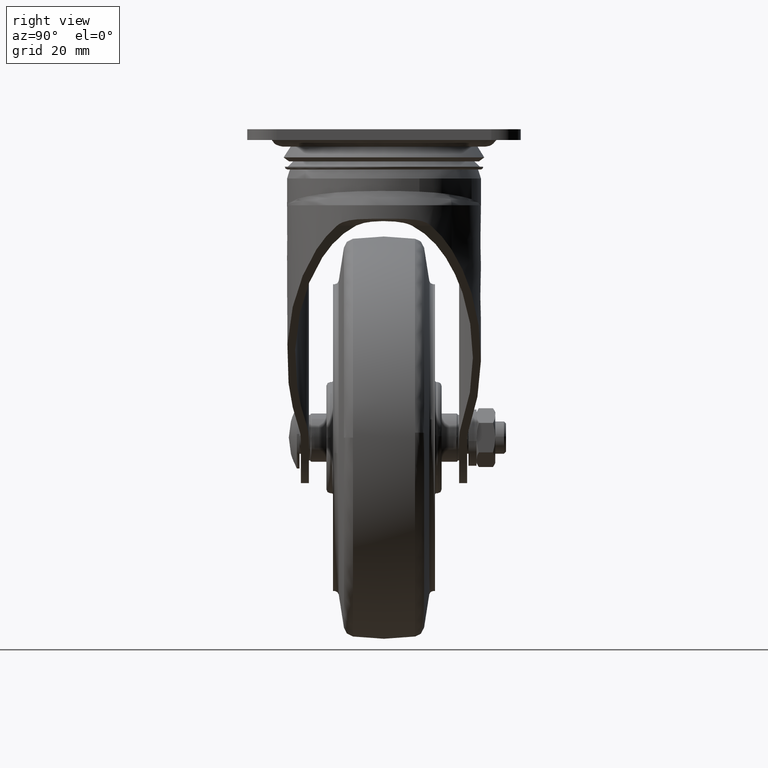
[diagram: clean part render]
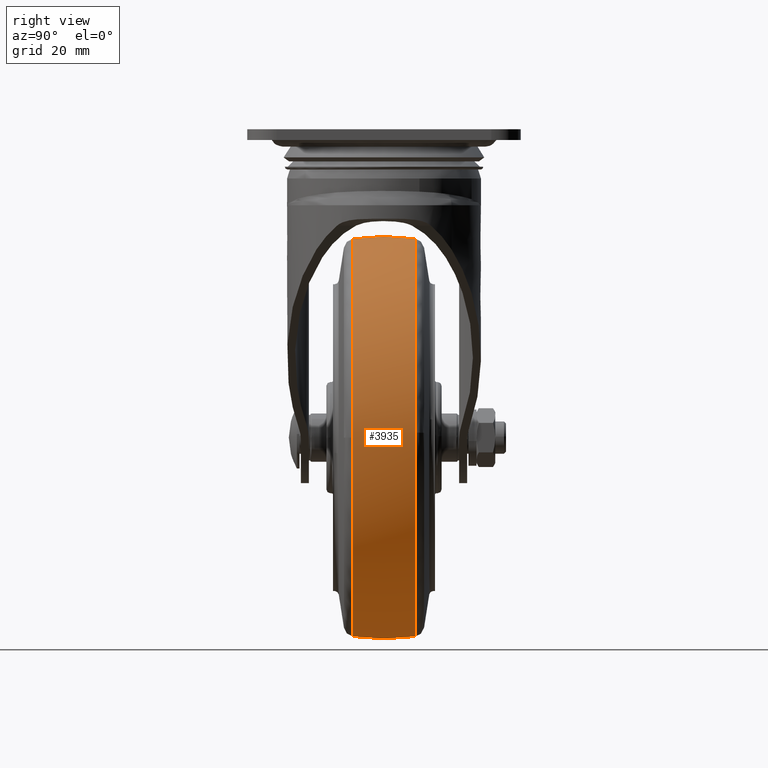
[diagram: same view with one face highlighted and labeled with its STEP entity id]
A machine part, right view. The second image highlights one B-rep face of the part: STEP entity #3935.
In plain terms, the highlighted face is a freeform B-spline surface patch.
Its self-contained STEP definition (entity closure, byte-faithful):
#2646=CARTESIAN_POINT('',(74.157616883559456,-11.578916482498091,-6.512784E-012));
#2647=VERTEX_POINT('',#2646);
#2661=CARTESIAN_POINT('',(-5.684342E-014,-11.578947922182341,74.157614700137188));
#2662=VERTEX_POINT('',#2661);
#2663=CARTESIAN_POINT('',(-5.684342E-014,-11.578947922182341,74.157614700137188));
#2664=CARTESIAN_POINT('',(74.157611003110134,-11.578948571175021,74.157614700136961));
#2665=CARTESIAN_POINT('',(74.157616883559456,-11.578916482498085,-6.512784E-012));
#2673=(BOUNDED_CURVE()B_SPLINE_CURVE(2,(#2663,#2664,#2665),.UNSPECIFIED.,.F.,.U.)B_SPLINE_CURVE_WITH_KNOTS((3,3),(0.0,0.249999988584620),.UNSPECIFIED.)CURVE()GEOMETRIC_REPRESENTATION_ITEM()RATIONAL_B_SPLINE_CURVE((1.0,0.707106794560497,0.999999973252103))REPRESENTATION_ITEM(''));
#2674=EDGE_CURVE('',#2662,#2647,#2673,.T.);
#2676=CARTESIAN_POINT('',(-73.661634925751287,-11.578909018834720,-8.562488077963099));
#2677=VERTEX_POINT('',#2676);
#2678=CARTESIAN_POINT('',(-73.661634925751287,-11.578909018834718,-8.562488077963099));
#2679=CARTESIAN_POINT('',(-74.157620206913109,-11.578910022193384,-4.295609425317387));
#2680=CARTESIAN_POINT('',(-74.157620043199699,-11.578911148939181,-0.000000621081920));
#2681=CARTESIAN_POINT('',(-74.157617216918979,-11.578930600612997,74.157614407584433));
#2682=CARTESIAN_POINT('',(-5.684342E-014,-11.578947922182341,74.157614700137188));
#2690=(BOUNDED_CURVE()B_SPLINE_CURVE(2,(#2678,#2679,#2680,#2681,#2682),.UNSPECIFIED.,.F.,.U.)B_SPLINE_CURVE_WITH_KNOTS((3,2,3),(0.730000147908049,0.750000000000000,1.0),.UNSPECIFIED.)CURVE()GEOMETRIC_REPRESENTATION_ITEM()RATIONAL_B_SPLINE_CURVE((0.956886409309762,0.976568715779982,1.0,0.707106781186547,1.0))REPRESENTATION_ITEM(''));
#2691=EDGE_CURVE('',#2677,#2662,#2690,.T.);
#2693=CARTESIAN_POINT('',(-5.696281E-014,-11.578882446838721,-74.157624277626596));
#2694=VERTEX_POINT('',#2693);
#2708=CARTESIAN_POINT('',(26.200034225914131,-11.578885571254871,-69.375149223615338));
#2709=VERTEX_POINT('',#2708);
#2710=CARTESIAN_POINT('',(26.200034225914120,-11.578885571254871,-69.375149223615338));
#2711=CARTESIAN_POINT('',(13.536506349746737,-11.578882953409460,-74.157624338162648));
#2712=CARTESIAN_POINT('',(-5.696281E-014,-11.578882446838721,-74.157624277626596));
#2720=(BOUNDED_CURVE()B_SPLINE_CURVE(2,(#2710,#2711,#2712),.UNSPECIFIED.,.F.,.U.)B_SPLINE_CURVE_WITH_KNOTS((3,3),(0.439999993027177,0.500000000000000),.UNSPECIFIED.)CURVE()GEOMETRIC_REPRESENTATION_ITEM()RATIONAL_B_SPLINE_CURVE((0.893152545280916,0.929705619315601,1.0))REPRESENTATION_ITEM(''));
#2721=EDGE_CURVE('',#2709,#2694,#2720,.T.);
#2758=CARTESIAN_POINT('',(74.157616883559427,-11.578916482498080,-6.512784E-012));
#2759=CARTESIAN_POINT('',(74.157619125064585,-11.578893709207986,-51.263612095189963));
#2760=CARTESIAN_POINT('',(26.200034225914120,-11.578885571254871,-69.375149223615338));
#2768=(BOUNDED_CURVE()B_SPLINE_CURVE(2,(#2758,#2759,#2760),.UNSPECIFIED.,.F.,.U.)B_SPLINE_CURVE_WITH_KNOTS((3,3),(0.249999988584620,0.439999993027177),.UNSPECIFIED.)CURVE()GEOMETRIC_REPRESENTATION_ITEM()RATIONAL_B_SPLINE_CURVE((1.000000026747900,0.777401154916493,0.893152545280916))REPRESENTATION_ITEM(''));
#2769=EDGE_CURVE('',#2647,#2709,#2768,.T.);
#2798=CARTESIAN_POINT('',(74.134196835988888,11.578920849007099,1.863587983165329));
#2799=VERTEX_POINT('',#2798);
#2800=CARTESIAN_POINT('',(-5.696281E-014,11.578892341684369,-74.157622809211517));
#2801=VERTEX_POINT('',#2800);
#2802=CARTESIAN_POINT('',(74.134196835988888,11.578920849007101,1.863587983165329));
#2803=CARTESIAN_POINT('',(74.157616692252290,11.578920501413389,0.931939156918001));
#2804=CARTESIAN_POINT('',(74.157616679878060,11.578920153665459,-0.000003988212071));
#2805=CARTESIAN_POINT('',(74.157615695221736,11.578892482279368,-74.157622785073599));
#2806=CARTESIAN_POINT('',(-5.696281E-014,11.578892341684369,-74.157622809211517));
#2814=(BOUNDED_CURVE()B_SPLINE_CURVE(2,(#2802,#2803,#2804,#2805,#2806),.UNSPECIFIED.,.F.,.U.)B_SPLINE_CURVE_WITH_KNOTS((3,2,3),(0.245579882486388,0.250000000000000,0.500000000000000),.UNSPECIFIED.)CURVE()GEOMETRIC_REPRESENTATION_ITEM()RATIONAL_B_SPLINE_CURVE((0.989826136698356,0.994821510215618,1.0,0.707106781186548,1.0))REPRESENTATION_ITEM(''));
#2815=EDGE_CURVE('',#2799,#2801,#2814,.T.);
#2817=CARTESIAN_POINT('',(-73.661633471116247,11.578918898959341,-8.562487892946319));
#2818=VERTEX_POINT('',#2817);
#2832=CARTESIAN_POINT('',(-74.134198958132956,11.578920105005750,-1.863588036564678));
#2833=VERTEX_POINT('',#2832);
#2834=CARTESIAN_POINT('',(-73.661633471116247,11.578918898959335,-8.562487892946319));
#2835=CARTESIAN_POINT('',(-74.049731263223435,11.578919474058864,-5.223747571157347));
#2836=CARTESIAN_POINT('',(-74.134198958132956,11.578920105005750,-1.863588036564678));
#2844=(BOUNDED_CURVE()B_SPLINE_CURVE(2,(#2834,#2835,#2836),.UNSPECIFIED.,.F.,.U.)B_SPLINE_CURVE_WITH_KNOTS((3,3),(0.730000147944140,0.745579892625950),.UNSPECIFIED.)CURVE()GEOMETRIC_REPRESENTATION_ITEM()RATIONAL_B_SPLINE_CURVE((0.956886409380798,0.972218788252939,0.989826159616707))REPRESENTATION_ITEM(''));
#2845=EDGE_CURVE('',#2818,#2833,#2844,.T.);
#2902=CARTESIAN_POINT('',(-5.684342E-014,11.578947396109101,74.157614735006902));
#2903=VERTEX_POINT('',#2902);
#2904=CARTESIAN_POINT('',(-5.684342E-014,11.578947396109101,74.157614735006902));
#2905=CARTESIAN_POINT('',(72.316862386599894,11.578947540282806,74.157614759759227));
#2906=CARTESIAN_POINT('',(74.134196835988888,11.578920849007101,1.863587983165329));
#2914=(BOUNDED_CURVE()B_SPLINE_CURVE(2,(#2904,#2905,#2906),.UNSPECIFIED.,.F.,.U.)B_SPLINE_CURVE_WITH_KNOTS((3,3),(0.0,0.245579882486388),.UNSPECIFIED.)CURVE()GEOMETRIC_REPRESENTATION_ITEM()RATIONAL_B_SPLINE_CURVE((1.0,0.712285270970930,0.989826136698356))REPRESENTATION_ITEM(''));
#2915=EDGE_CURVE('',#2903,#2799,#2914,.T.);
#2922=CARTESIAN_POINT('',(-74.134198958132956,11.578920105005752,-1.863588036564678));
#2923=CARTESIAN_POINT('',(-74.157618694762832,11.578920280223105,-0.931941405403477));
#2924=CARTESIAN_POINT('',(-74.157618668614219,11.578920459285360,-0.000000457245711));
#2925=CARTESIAN_POINT('',(-74.157616587882742,11.578934707860245,74.157614519627131));
#2926=CARTESIAN_POINT('',(-5.684342E-014,11.578947396109101,74.157614735006902));
#2934=(BOUNDED_CURVE()B_SPLINE_CURVE(2,(#2922,#2923,#2924,#2925,#2926),.UNSPECIFIED.,.F.,.U.)B_SPLINE_CURVE_WITH_KNOTS((3,2,3),(0.745579892625950,0.750000000000000,1.0),.UNSPECIFIED.)CURVE()GEOMETRIC_REPRESENTATION_ITEM()RATIONAL_B_SPLINE_CURVE((0.989826159616707,0.994821522094854,1.0,0.707106781186548,1.0))REPRESENTATION_ITEM(''));
#2935=EDGE_CURVE('',#2833,#2903,#2934,.T.);
#3842=CARTESIAN_POINT('',(-73.481397214599895,12.757882361614785,-8.541600383305603));
#3843=CARTESIAN_POINT('',(-74.498373122481283,6.420022245387028,-8.659815361978412));
#3844=CARTESIAN_POINT('',(-74.498373122481297,0.0,-8.659815361978414));
#3845=CARTESIAN_POINT('',(-74.498373122481283,-6.420022245387028,-8.659815361978412));
#3846=CARTESIAN_POINT('',(-73.481397214599895,-12.757882361614785,-8.541600383305603));
#3847=CARTESIAN_POINT('',(-73.976176392930029,12.757882361614792,-4.285130435654120));
#3848=CARTESIAN_POINT('',(-74.999999999999986,6.420022245387028,-4.344436254274612));
#3849=CARTESIAN_POINT('',(-74.999999999999986,0.0,-4.344436254274612));
#3850=CARTESIAN_POINT('',(-74.999999999999986,-6.420022245387027,-4.344436254274612));
#3851=CARTESIAN_POINT('',(-73.976176392930029,-12.757882361614779,-4.285130435654120));
#3852=CARTESIAN_POINT('',(-73.976176392930029,12.757882361614783,0.0));
#3853=CARTESIAN_POINT('',(-75.0,6.420022245387028,0.0));
#3854=CARTESIAN_POINT('',(-75.0,0.0,0.0));
#3855=CARTESIAN_POINT('',(-75.0,-6.420022245387027,0.0));
#3856=CARTESIAN_POINT('',(-73.976176392930029,-12.757882361614783,0.0));
#3857=CARTESIAN_POINT('',(-73.976176392930014,12.757882361614783,73.976176392929943));
#3858=CARTESIAN_POINT('',(-74.999999999999986,6.420022245387029,74.999999999999943));
#3859=CARTESIAN_POINT('',(-75.000000000000014,0.0,74.999999999999943));
#3860=CARTESIAN_POINT('',(-74.999999999999986,-6.420022245387027,74.999999999999943));
#3861=CARTESIAN_POINT('',(-73.976176392930014,-12.757882361614781,73.976176392929943));
#3862=CARTESIAN_POINT('',(-5.724587E-014,12.757882361614783,73.976176392929972));
#3863=CARTESIAN_POINT('',(-5.724587E-014,6.420022245387028,74.999999999999943));
#3864=CARTESIAN_POINT('',(-5.724587E-014,0.0,74.999999999999943));
#3865=CARTESIAN_POINT('',(-5.724587E-014,-6.420022245387027,74.999999999999943));
#3866=CARTESIAN_POINT('',(-5.724587E-014,-12.757882361614783,73.976176392929972));
#3867=CARTESIAN_POINT('',(73.976176392929901,12.757882361614783,73.976176392929943));
#3868=CARTESIAN_POINT('',(74.999999999999872,6.420022245387029,74.999999999999943));
#3869=CARTESIAN_POINT('',(74.999999999999886,0.0,74.999999999999943));
#3870=CARTESIAN_POINT('',(74.999999999999872,-6.420022245387027,74.999999999999943));
#3871=CARTESIAN_POINT('',(73.976176392929901,-12.757882361614781,73.976176392929943));
#3872=CARTESIAN_POINT('',(73.976176392929929,12.757882361614783,0.0));
#3873=CARTESIAN_POINT('',(74.999999999999886,6.420022245387028,0.0));
#3874=CARTESIAN_POINT('',(74.999999999999886,0.0,0.0));
#3875=CARTESIAN_POINT('',(74.999999999999886,-6.420022245387027,0.0));
#3876=CARTESIAN_POINT('',(73.976176392929929,-12.757882361614783,0.0));
#3877=CARTESIAN_POINT('',(73.976176392929901,12.757882361614783,-73.976176392929943));
#3878=CARTESIAN_POINT('',(74.999999999999872,6.420022245387029,-74.999999999999943));
#3879=CARTESIAN_POINT('',(74.999999999999886,0.0,-74.999999999999943));
#3880=CARTESIAN_POINT('',(74.999999999999872,-6.420022245387027,-74.999999999999943));
#3881=CARTESIAN_POINT('',(73.976176392929901,-12.757882361614781,-73.976176392929943));
#3882=CARTESIAN_POINT('',(-5.724587E-014,12.757882361614783,-73.976176392929972));
#3883=CARTESIAN_POINT('',(-5.724587E-014,6.420022245387028,-74.999999999999943));
#3884=CARTESIAN_POINT('',(-5.724587E-014,0.0,-74.999999999999943));
#3885=CARTESIAN_POINT('',(-5.724587E-014,-6.420022245387027,-74.999999999999943));
#3886=CARTESIAN_POINT('',(-5.724587E-014,-12.757882361614783,-73.976176392929972));
#3894=(BOUNDED_SURFACE()B_SPLINE_SURFACE(2,2,((#3842,#3847,#3852,#3857,#3862,#3867,#3872,#3877,#3882),(#3843,#3848,#3853,#3858,#3863,#3868,#3873,#3878,#3883),(#3844,#3849,#3854,#3859,#3864,#3869,#3874,#3879,#3884),(#3845,#3850,#3855,#3860,#3865,#3870,#3875,#3880,#3885),(#3846,#3851,#3856,#3861,#3866,#3871,#3876,#3881,#3886)),.UNSPECIFIED.,.F.,.F.,.U.)B_SPLINE_SURFACE_WITH_KNOTS((3,2,3),(3,2,2,2,3),(0.0,13.163328992303690,26.326657984607390),(0.0,9.941123423073886,134.205192135002310,258.469260846930810,382.733329558859230),.UNSPECIFIED.)GEOMETRIC_REPRESENTATION_ITEM()RATIONAL_B_SPLINE_SURFACE(((0.904636086796726,0.923243764139943,0.945395760096864,0.668495752869503,0.945395760096864,0.668495752869503,0.945395760096864,0.668495752869503,0.945395760096864),(0.927412863512409,0.946489041856447,0.969198777077899,0.685327027589491,0.969198777077899,0.685327027589491,0.969198777077899,0.685327027589491,0.969198777077899),(0.956886126402807,0.976568547383107,1.0,0.707106781186548,1.0,0.707106781186548,1.0,0.707106781186548,1.0),(0.927412863512409,0.946489041856447,0.969198777077899,0.685327027589491,0.969198777077899,0.685327027589491,0.969198777077899,0.685327027589491,0.969198777077899),(0.904636086796726,0.923243764139943,0.945395760096864,0.668495752869503,0.945395760096864,0.668495752869503,0.945395760096864,0.668495752869503,0.945395760096864)))REPRESENTATION_ITEM('')SURFACE());
#3895=ORIENTED_EDGE('',*,*,#2691,.T.);
#3896=ORIENTED_EDGE('',*,*,#2674,.T.);
#3897=ORIENTED_EDGE('',*,*,#2769,.T.);
#3898=ORIENTED_EDGE('',*,*,#2721,.T.);
#3899=CARTESIAN_POINT('',(-5.696281E-014,11.578892341684369,-74.157622809211517));
#3900=CARTESIAN_POINT('',(-5.697105E-014,5.820088105779515,-74.999999999999957));
#3901=CARTESIAN_POINT('',(-5.684342E-014,0.0,-74.999999999999943));
#3902=CARTESIAN_POINT('',(-5.697105E-014,-5.820083077713235,-74.999999999999943));
#3903=CARTESIAN_POINT('',(-5.696281E-014,-11.578882446838719,-74.157624277626596));
#3911=(BOUNDED_CURVE()B_SPLINE_CURVE(2,(#3899,#3900,#3901,#3902,#3903),.UNSPECIFIED.,.F.,.U.)B_SPLINE_CURVE_WITH_KNOTS((3,2,3),(0.448357932285986,0.500000000000000,0.551642024348973),.UNSPECIFIED.)CURVE()GEOMETRIC_REPRESENTATION_ITEM()RATIONAL_B_SPLINE_CURVE((0.949777576680335,0.971996467719662,1.0,0.971996491234877,0.949777613995774))REPRESENTATION_ITEM(''));
#3912=EDGE_CURVE('',#2801,#2694,#3911,.T.);
#3913=ORIENTED_EDGE('',*,*,#3912,.F.);
#3914=ORIENTED_EDGE('',*,*,#2815,.F.);
#3915=ORIENTED_EDGE('',*,*,#2915,.F.);
#3916=ORIENTED_EDGE('',*,*,#2935,.F.);
#3917=ORIENTED_EDGE('',*,*,#2845,.F.);
#3918=CARTESIAN_POINT('',(-73.661633471116247,11.578918898959339,-8.562487892946319));
#3919=CARTESIAN_POINT('',(-74.498380381850666,5.820101594488507,-8.659752776746782));
#3920=CARTESIAN_POINT('',(-74.498380386533242,-1.506371E-009,-8.659752781294053));
#3921=CARTESIAN_POINT('',(-74.498380391215804,-5.820096576912553,-8.659752785841322));
#3922=CARTESIAN_POINT('',(-73.661634925751287,-11.578909018834716,-8.562488077963099));
#3930=(BOUNDED_CURVE()B_SPLINE_CURVE(2,(#3918,#3919,#3920,#3921,#3922),.UNSPECIFIED.,.F.,.U.)B_SPLINE_CURVE_WITH_KNOTS((3,2,3),(0.448357815931768,0.500000000000000,0.551642140767689),.UNSPECIFIED.)CURVE()GEOMETRIC_REPRESENTATION_ITEM()RATIONAL_B_SPLINE_CURVE((0.908828882688552,0.930089866517074,0.956886118190660,0.930089888984990,0.908828918342050))REPRESENTATION_ITEM(''));
#3931=EDGE_CURVE('',#2818,#2677,#3930,.T.);
#3932=ORIENTED_EDGE('',*,*,#3931,.T.);
#3933=EDGE_LOOP('',(#3895,#3896,#3897,#3898,#3913,#3914,#3915,#3916,#3917,#3932));
#3934=FACE_OUTER_BOUND('',#3933,.T.);
#3935=ADVANCED_FACE('',(#3934),#3894,.T.);